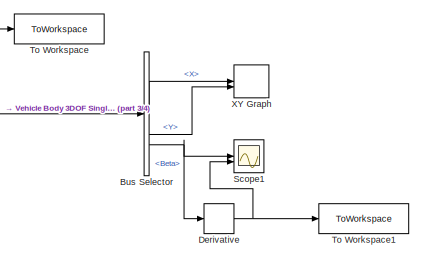
[diagram: root canvas - part 1/4, top right region]
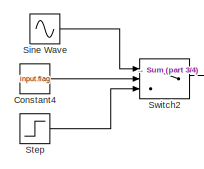
[diagram: root canvas - part 2/4, top left region]
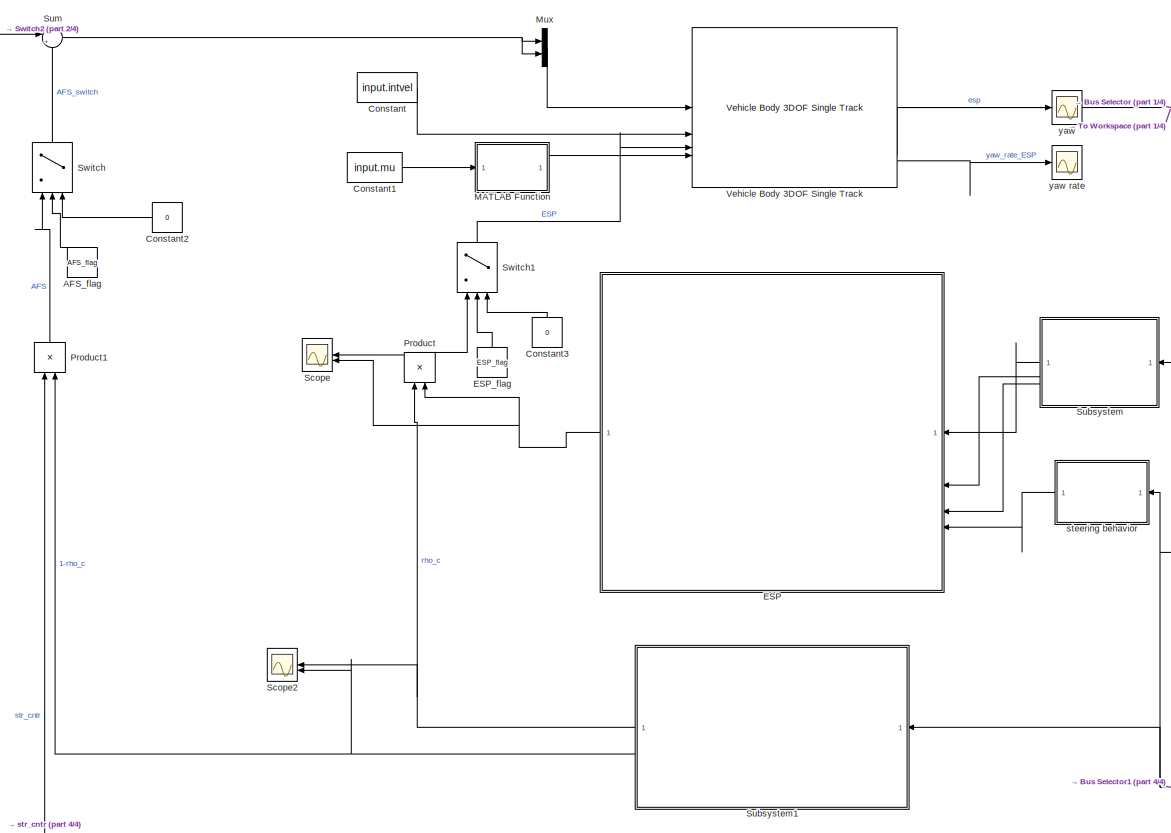
[diagram: root canvas - part 3/4, central region]
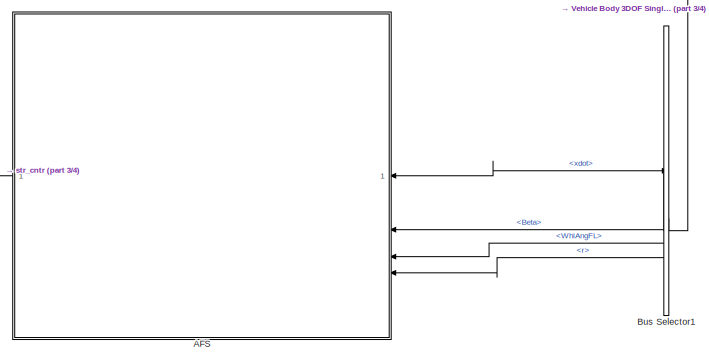
[diagram: root canvas - part 4/4, bottom center region]
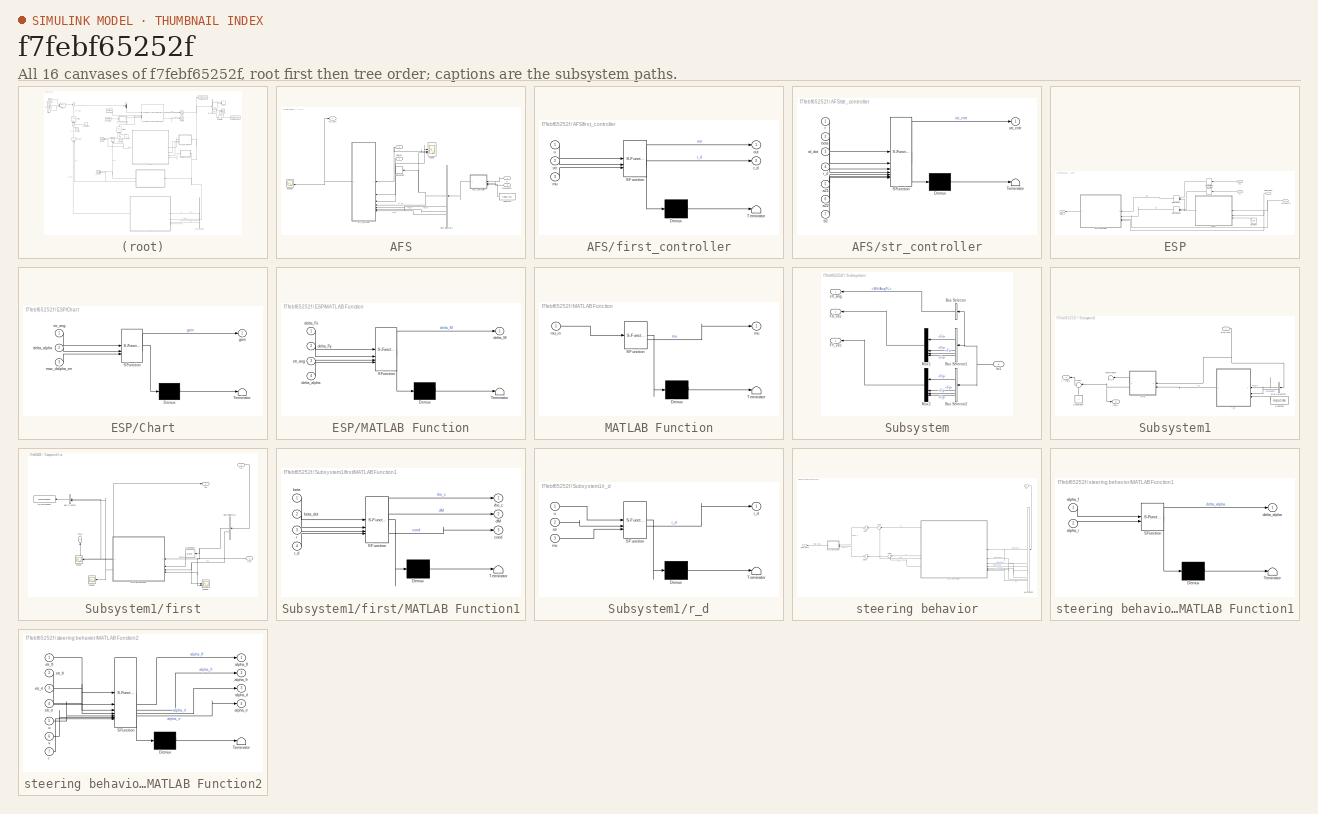
[diagram: thumbnail index - all 16 canvases of the model, root first then tree order]
MODEL slx_f7febf65252f
KIND model
CONFIG AbsTol = auto
CONFIG EnableMultiTasking = off
CONFIG FixedStep = auto
CONFIG MaxStep = auto
CONFIG MinStep = auto
CONFIG RelTol = 1e-3
CONFIG SampleTimeConstraint = Unconstrained
CONFIG SolverName = FixedStepAuto
CONFIG StartTime = 0.0
CONFIG StopTime = Tf
BLOCK [SubSystem] AFS
  NameLocation = top
BLOCK [Inport] AFS/<Beta>
  NameLocation = top
  Port = 2
BLOCK [Inport] AFS/<WhlAngFL>
  Port = 3
BLOCK [BusSelector] AFS/Bus Selector1
  NameLocation = top
  OutputSignals = r_d,a21,a22,b2
BLOCK [Constant] AFS/Constant
  NameLocation = top
  Value = input.mu
BLOCK [Derivative] AFS/Derivative
  NameLocation = top
BLOCK [Scope] AFS/Scope
  Floating = off
  NumInputPorts = 3
  ScopeSpecificationString = Simulink.scopes.TimeScopeBlockCfg('CurrentConfiguration', extmgr.ConfigurationSet(extmgr.Configuration('Core','General UI',true),extmgr.Configuration('Core','Source UI',true),extmgr.Configuration('Sources','WiredSimulink',true,'DataLoggingVariableName','ScopeData1'),extmgr.Configuration('Visuals','Time Domain',true,'SerializedDisplays',{struct('MinYLimReal','-1.67375','MaxYLimReal','1.77621','YLab...<+1405ch>
BLOCK [Scope] AFS/Scope1
  Floating = off
  NameLocation = top
  NumInputPorts = 2
  ScopeSpecificationString = Simulink.scopes.TimeScopeBlockCfg('CurrentConfiguration', extmgr.ConfigurationSet(extmgr.Configuration('Core','General UI',true),extmgr.Configuration('Core','Source UI',true),extmgr.Configuration('Sources','WiredSimulink',true,'DataLoggingVariableName','ScopeData1'),extmgr.Configuration('Visuals','Time Domain',true,'SerializedDisplays',{struct('MinYLimReal','-0.75','MaxYLimReal','0.74999','YLabelR...<+1428ch>
BLOCK [SubSystem] AFS/first_controller
  ErrorFcn = Stateflow.Translate.translate
  LibrarySourceBlock = simulink/User-Defined\nFunctions/MATLAB Function
  NameLocation = top
  PermitHierarchicalResolution = ExplicitOnly
  SFBlockType = MATLAB Function
  TreatAsAtomicUnit = on
BLOCK [Demux] AFS/first_controller/ Demux 
  Outputs = 1
BLOCK [S-Function] AFS/first_controller/ SFunction 
  EnableBusSupport = on
  FunctionName = sf_sfun
  Parameters = vehicle_data
  PortCounts = [3 3]
  SFcnIsStateOwnerBlock = off
  SFunctionDeploymentMode = off
  Tag = Stateflow S-Function 4
BLOCK [Terminator] AFS/first_controller/ Terminator 
BLOCK [Inport] AFS/first_controller/mu
  Port = 3
BLOCK [Outport] AFS/first_controller/out
BLOCK [Outport] AFS/first_controller/r_d
  Port = 2
BLOCK [Inport] AFS/first_controller/str
  Port = 2
BLOCK [Inport] AFS/first_controller/u
BLOCK [Inport] AFS/r
  NameLocation = top
  Port = 4
BLOCK [Outport] AFS/str_cntr
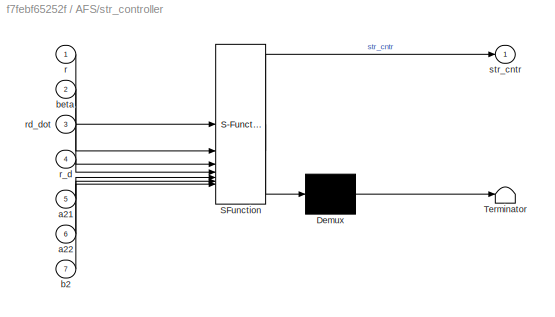
BLOCK [SubSystem] AFS/str_controller
  ErrorFcn = Stateflow.Translate.translate
  LibrarySourceBlock = simulink/User-Defined\nFunctions/MATLAB Function
  NameLocation = top
  PermitHierarchicalResolution = ExplicitOnly
  SFBlockType = MATLAB Function
  TreatAsAtomicUnit = on
BLOCK [Demux] AFS/str_controller/ Demux 
  Outputs = 1
BLOCK [S-Function] AFS/str_controller/ SFunction 
  EnableBusSupport = on
  FunctionName = sf_sfun
  Parameters = vehicle_data
  PortCounts = [7 2]
  SFcnIsStateOwnerBlock = off
  SFunctionDeploymentMode = off
  Tag = Stateflow S-Function 5
BLOCK [Terminator] AFS/str_controller/ Terminator 
BLOCK [Inport] AFS/str_controller/a21
  Port = 5
BLOCK [Inport] AFS/str_controller/a22
  Port = 6
BLOCK [Inport] AFS/str_controller/b2
  Port = 7
BLOCK [Inport] AFS/str_controller/beta
  Port = 2
BLOCK [Inport] AFS/str_controller/r
BLOCK [Inport] AFS/str_controller/r_d
  Port = 4
BLOCK [Inport] AFS/str_controller/rd_dot
  Port = 3
BLOCK [Outport] AFS/str_controller/str_cntr
BLOCK [Inport] AFS/u
  NameLocation = top
BLOCK [Constant] AFS_flag
  NameLocation = right
  Value = AFS_flag
BLOCK [BusSelector] Bus Selector
  OutputSignals = InertFrm.Cg.Disp.X,InertFrm.Cg.Disp.Y,BdyFrm.Cg.Ang.Beta
BLOCK [BusSelector] Bus Selector1
  NameLocation = top
  OutputSignals = BdyFrm.Cg.Vel.xdot,BdyFrm.Cg.Ang.Beta,BdyFrm.FrntAxl.Steer.WhlAngFL,BdyFrm.Cg.AngVel.r
BLOCK [Constant] Constant
  Value = input.intvel
BLOCK [Constant] Constant1
  Value = input.mu
BLOCK [Constant] Constant2
  NameLocation = top
  Value = 0
BLOCK [Constant] Constant3
  NameLocation = right
  Value = 0
BLOCK [Constant] Constant4
  Value = input.flag
BLOCK [Derivative] Derivative
BLOCK [SubSystem] ESP
  NameLocation = top
BLOCK [Inport] ESP/<WhlAngFL>
  NameLocation = top
BLOCK [SubSystem] ESP/Chart
  ErrorFcn = Stateflow.Translate.translate
  NameLocation = top
  PermitHierarchicalResolution = ExplicitOnly
  SFBlockType = Chart
  TreatAsAtomicUnit = on
BLOCK [Demux] ESP/Chart/ Demux 
  Outputs = 1
BLOCK [S-Function] ESP/Chart/ SFunction 
  EnableBusSupport = on
  FunctionName = sf_sfun
  PortCounts = [3 2]
  SFcnIsStateOwnerBlock = off
  SFunctionDeploymentMode = off
  Tag = Stateflow S-Function 6
BLOCK [Terminator] ESP/Chart/ Terminator 
BLOCK [Inport] ESP/Chart/delta_alpha
  Port = 2
BLOCK [Outport] ESP/Chart/gain
BLOCK [Inport] ESP/Chart/max_dalpha_err
  Port = 3
BLOCK [Inport] ESP/Chart/str_ang
BLOCK [Constant] ESP/Constant
  NameLocation = top
  Value = 0.05
BLOCK [Derivative] ESP/Derivative
  NameLocation = top
BLOCK [Derivative] ESP/Derivative1
  NameLocation = top
BLOCK [DotProduct] ESP/Dot Product
  NameLocation = top
  OutDataTypeStr = Inherit: Inherit via internal rule
BLOCK [DotProduct] ESP/Dot Product1
  NameLocation = top
  OutDataTypeStr = Inherit: Inherit via internal rule
BLOCK [Inport] ESP/Fxi
  NameLocation = top
  Port = 2
BLOCK [Inport] ESP/Fyi
  NameLocation = top
  Port = 3
BLOCK [SubSystem] ESP/MATLAB Function
  ErrorFcn = Stateflow.Translate.translate
  LibrarySourceBlock = simulink/User-Defined\nFunctions/MATLAB Function
  NameLocation = top
  PermitHierarchicalResolution = ExplicitOnly
  SFBlockType = MATLAB Function
  TreatAsAtomicUnit = on
BLOCK [Demux] ESP/MATLAB Function/ Demux 
  Outputs = 1
BLOCK [S-Function] ESP/MATLAB Function/ SFunction 
  EnableBusSupport = on
  FunctionName = sf_sfun
  Parameters = vehicle_data
  PortCounts = [4 2]
  SFcnIsStateOwnerBlock = off
  SFunctionDeploymentMode = off
  Tag = Stateflow S-Function 3
BLOCK [Terminator] ESP/MATLAB Function/ Terminator 
BLOCK [Inport] ESP/MATLAB Function/delta_Fx
BLOCK [Inport] ESP/MATLAB Function/delta_Fy
  Port = 2
BLOCK [Outport] ESP/MATLAB Function/delta_M
BLOCK [Inport] ESP/MATLAB Function/delta_alpha
  Port = 4
BLOCK [Inport] ESP/MATLAB Function/str_ang
  Port = 3
BLOCK [Outport] ESP/delta_M
  NameLocation = top
BLOCK [Inport] ESP/delta_alpha
  NameLocation = top
  Port = 4
BLOCK [Constant] ESP_flag
  NameLocation = right
  Value = ESP_flag
BLOCK [SubSystem] MATLAB Function
  ErrorFcn = Stateflow.Translate.translate
  LibrarySourceBlock = simulink/User-Defined\nFunctions/MATLAB Function
  PermitHierarchicalResolution = ExplicitOnly
  SFBlockType = MATLAB Function
  TreatAsAtomicUnit = on
BLOCK [Demux] MATLAB Function/ Demux 
  Outputs = 1
BLOCK [S-Function] MATLAB Function/ SFunction 
  EnableBusSupport = on
  FunctionName = sf_sfun
  PortCounts = [1 2]
  SFcnIsStateOwnerBlock = off
  SFunctionDeploymentMode = off
  Tag = Stateflow S-Function 2
BLOCK [Terminator] MATLAB Function/ Terminator 
BLOCK [Outport] MATLAB Function/mu
BLOCK [Inport] MATLAB Function/mu_in
BLOCK [Mux] Mux
  DisplayOption = bar
  Inputs = 2
BLOCK [Product] Product
  NameLocation = right
BLOCK [Product] Product1
  NameLocation = right
BLOCK [Scope] Scope
  Floating = off
  NameLocation = top
  NumInputPorts = 2
  ScopeSpecificationString = Simulink.scopes.TimeScopeBlockCfg('CurrentConfiguration', extmgr.ConfigurationSet(extmgr.Configuration('Core','General UI',true),extmgr.Configuration('Core','Source UI',true),extmgr.Configuration('Sources','WiredSimulink',true,'DataLoggingVariableName','ScopeData1'),extmgr.Configuration('Visuals','Time Domain',true,'SerializedDisplays',{struct('MinYLimReal','-4557.4267','MaxYLimReal','511.96642','...<+1597ch>
BLOCK [Scope] Scope1
  Floating = off
  NumInputPorts = 2
  ScopeSpecificationString = Simulink.scopes.TimeScopeBlockCfg('CurrentConfiguration', extmgr.ConfigurationSet(extmgr.Configuration('Core','General UI',true),extmgr.Configuration('Core','Source UI',true),extmgr.Configuration('Sources','WiredSimulink',true,'DataLoggingVariableName','ScopeData5'),extmgr.Configuration('Visuals','Time Domain',true,'SerializedDisplays',{struct('MinYLimReal','-1.42099','MaxYLimReal','1.391','YLabel...<+1443ch>
BLOCK [Scope] Scope2
  Floating = off
  NameLocation = top
  NumInputPorts = 2
  ScopeSpecificationString = Simulink.scopes.TimeScopeBlockCfg('CurrentConfiguration', extmgr.ConfigurationSet(extmgr.Configuration('Core','General UI',true),extmgr.Configuration('Core','Source UI',true),extmgr.Configuration('Sources','WiredSimulink',true,'DataLoggingVariableName','ScopeData6'),extmgr.Configuration('Visuals','Time Domain',true,'SerializedDisplays',{struct('MinYLimReal','-0.125','MaxYLimReal','1.125','YLabelRe...<+1386ch>
BLOCK [Sin] Sine Wave
  Amplitude = input.str.amp
  Frequency = input.str.freq
  SampleTime = input.str.sample_time
BLOCK [Step] Step
  After = input.str.amp
  SampleTime = 0
  Time = 2
BLOCK [SubSystem] Subsystem
  NameLocation = top
BLOCK [BusSelector] Subsystem/Bus Selector
  NameLocation = top
  OutputSignals = BdyFrm.FrntAxl.Steer.WhlAngFL
BLOCK [BusSelector] Subsystem/Bus Selector1
  NameLocation = top
  OutputSignals = BdyFrm.Forces.FrntAxl.Lft.Fx,BdyFrm.Forces.FrntAxl.Rght.Fx,BdyFrm.Forces.RearAxl.Lft.Fx,BdyFrm.Forces.RearAxl.Rght.Fx
BLOCK [BusSelector] Subsystem/Bus Selector2
  NameLocation = top
  OutputSignals = BdyFrm.Forces.FrntAxl.Lft.Fy,BdyFrm.Forces.FrntAxl.Rght.Fy,BdyFrm.Forces.RearAxl.Lft.Fy,BdyFrm.Forces.RearAxl.Rght.Fy
BLOCK [Outport] Subsystem/FX_vec
  Port = 2
BLOCK [Outport] Subsystem/FY_vec
  Port = 3
BLOCK [Inport] Subsystem/In1
BLOCK [Mux] Subsystem/Mux1
  DisplayOption = bar
  NameLocation = top
BLOCK [Mux] Subsystem/Mux2
  DisplayOption = bar
  NameLocation = top
BLOCK [Outport] Subsystem/str_ang
  NameLocation = top
BLOCK [SubSystem] Subsystem1
  NameLocation = top
BLOCK [Outport] Subsystem1/1 - rho_c
  NameLocation = top
BLOCK [BusSelector] Subsystem1/Bus Selector1
  NameLocation = top
  OutputSignals = BdyFrm.Cg.Vel.xdot,BdyFrm.FrntAxl.Steer.WhlAngFL
BLOCK [Inport] Subsystem1/Bus info
BLOCK [Constant] Subsystem1/Constant
  NameLocation = top
  Value = input.mu
BLOCK [Constant] Subsystem1/Constant5
  NameLocation = right
BLOCK [Sum] Subsystem1/Sum1
  Inputs = |-+
  NameLocation = top
BLOCK [Terminator] Subsystem1/Terminator
  NameLocation = top
BLOCK [SubSystem] Subsystem1/first
  NameLocation = top
BLOCK [BusCreator] Subsystem1/first/Bus Creator
  DisplayOption = bar
  InheritFromInputs = on
  Inputs = 2
  NameLocation = top
BLOCK [BusSelector] Subsystem1/first/Bus Selector1
  NameLocation = top
  OutputSignals = BdyFrm.Cg.Ang.Beta,BdyFrm.Cg.AngVel.r
BLOCK [Derivative] Subsystem1/first/Derivative
  NameLocation = top
BLOCK [Inport] Subsystem1/first/In1
BLOCK [SubSystem] Subsystem1/first/MATLAB Function1
  ErrorFcn = Stateflow.Translate.translate
  LibrarySourceBlock = simulink/User-Defined\nFunctions/MATLAB Function
  NameLocation = top
  PermitHierarchicalResolution = ExplicitOnly
  SFBlockType = MATLAB Function
  TreatAsAtomicUnit = on
BLOCK [Demux] Subsystem1/first/MATLAB Function1/ Demux 
  Outputs = 1
BLOCK [S-Function] Subsystem1/first/MATLAB Function1/ SFunction 
  EnableBusSupport = on
  FunctionName = sf_sfun
  Parameters = vehicle_data
  PortCounts = [4 4]
  SFcnIsStateOwnerBlock = off
  SFunctionDeploymentMode = off
  Tag = Stateflow S-Function 23
BLOCK [Terminator] Subsystem1/first/MATLAB Function1/ Terminator 
BLOCK [Inport] Subsystem1/first/MATLAB Function1/beta
BLOCK [Inport] Subsystem1/first/MATLAB Function1/beta_dot
  Port = 2
BLOCK [Outport] Subsystem1/first/MATLAB Function1/cond
  Port = 3
BLOCK [Outport] Subsystem1/first/MATLAB Function1/dM
  Port = 2
BLOCK [Inport] Subsystem1/first/MATLAB Function1/r
  Port = 3
BLOCK [Inport] Subsystem1/first/MATLAB Function1/r_d
  Port = 4
BLOCK [Outport] Subsystem1/first/MATLAB Function1/rho_c
BLOCK [Scope] Subsystem1/first/Scope
  Floating = off
  NameLocation = top
  NumInputPorts = 1
  ScopeSpecificationString = Simulink.scopes.TimeScopeBlockCfg('CurrentConfiguration', extmgr.ConfigurationSet(extmgr.Configuration('Core','General UI',true),extmgr.Configuration('Core','Source UI',true),extmgr.Configuration('Sources','WiredSimulink',true,'DataLoggingVariableName','ScopeData2'),extmgr.Configuration('Visuals','Time Domain',true,'SerializedDisplays',{struct('MinYLimReal','-78.6441','MaxYLimReal','367.95585','YL...<+1530ch>
BLOCK [Scope] Subsystem1/first/Scope1
  Floating = off
  NumInputPorts = 2
  ScopeSpecificationString = Simulink.scopes.TimeScopeBlockCfg('CurrentConfiguration', extmgr.ConfigurationSet(extmgr.Configuration('Core','General UI',true),extmgr.Configuration('Core','Source UI',true),extmgr.Configuration('Sources','WiredSimulink',true,'DataLoggingVariableName','ScopeData3'),extmgr.Configuration('Visuals','Time Domain',true,'SerializedDisplays',{struct('MinYLimReal','-1.14469','MaxYLimReal','2.95049','YLab...<+1392ch>
BLOCK [Scope] Subsystem1/first/Scope2
  Floating = off
  NameLocation = top
  NumInputPorts = 1
  ScopeSpecificationString = Simulink.scopes.TimeScopeBlockCfg('CurrentConfiguration', extmgr.ConfigurationSet(extmgr.Configuration('Core','General UI',true),extmgr.Configuration('Core','Source UI',true),extmgr.Configuration('Sources','WiredSimulink',true,'DataLoggingVariableName','ScopeData4'),extmgr.Configuration('Visuals','Time Domain',true,'SerializedDisplays',{struct('MinYLimReal','-7.85809','MaxYLimReal','70.72279','YLa...<+1410ch>
BLOCK [ToWorkspace] Subsystem1/first/To Workspace
  FixptAsFi = on
  MaxDataPoints = inf
  NameLocation = top
  SampleTime = -1
  SaveFormat = Timeseries
  VariableName = Activation_fun
BLOCK [Outport] Subsystem1/first/dM
BLOCK [Inport] Subsystem1/first/r_d
  Port = 2
BLOCK [Outport] Subsystem1/first/rho_c
  NameLocation = right
  Port = 2
BLOCK [SubSystem] Subsystem1/r_d
  ErrorFcn = Stateflow.Translate.translate
  LibrarySourceBlock = simulink/User-Defined\nFunctions/MATLAB Function
  NameLocation = top
  PermitHierarchicalResolution = ExplicitOnly
  SFBlockType = MATLAB Function
  TreatAsAtomicUnit = on
BLOCK [Demux] Subsystem1/r_d/ Demux 
  Outputs = 1
BLOCK [S-Function] Subsystem1/r_d/ SFunction 
  EnableBusSupport = on
  FunctionName = sf_sfun
  Parameters = vehicle_data
  PortCounts = [3 2]
  SFcnIsStateOwnerBlock = off
  SFunctionDeploymentMode = off
  Tag = Stateflow S-Function 24
BLOCK [Terminator] Subsystem1/r_d/ Terminator 
BLOCK [Inport] Subsystem1/r_d/mu
  Port = 3
BLOCK [Outport] Subsystem1/r_d/r_d
BLOCK [Inport] Subsystem1/r_d/str
  Port = 2
BLOCK [Inport] Subsystem1/r_d/u
BLOCK [Outport] Subsystem1/rho_c
  Port = 2
BLOCK [Sum] Sum
  Inputs = |+-
BLOCK [Switch] Switch
  Criteria = u2 > Threshold
  InputSameDT = off
  NameLocation = right
  SaturateOnIntegerOverflow = off
  Threshold = 0.5
BLOCK [Switch] Switch1
  Criteria = u2 > Threshold
  InputSameDT = off
  NameLocation = right
  SaturateOnIntegerOverflow = off
  Threshold = 0.5
BLOCK [Switch] Switch2
  Criteria = u2 > Threshold
  InputSameDT = off
  SaturateOnIntegerOverflow = off
  Threshold = 0.5
BLOCK [ToWorkspace] To Workspace
  FixptAsFi = on
  MaxDataPoints = inf
  SampleTime = -1
  SaveFormat = Timeseries
  VariableName = ESP
BLOCK [ToWorkspace] To Workspace1
  FixptAsFi = on
  MaxDataPoints = inf
  SampleTime = -1
  SaveFormat = Timeseries
  VariableName = beta_dot
BLOCK [Reference] Vehicle Body 3DOF Single Track  REF=autolibshared/Vehicle Body 3DOF Single Track
  LibrarySourceBlock = vehdynlibeom/Vehicle Body 3DOF Single Track
  SourceBlock = autolibshared/Vehicle Body 3DOF Single Track
  SourceType = Vehicle Body 3DOF Lateral
BLOCK [Record] XY Graph
  CompatibilityTag = XY
  FileSettingsInternal = {"entries":[{"content":{"excelSettings":{"content":{},"type":"Streamout.ExcelSettings"}},"type":"Streamout.FileSettingStorage","uuid":""}],"packageUris":["http:\/\/schema.mathworks.com\/mf0\/streamout_blocks\/R2020a"],"version":"1.0"}
  Layout = [1 1]
  SignalsInternal = {"entries":[{"content":{"signals":[{"content":{"blockPath":[],"dimensions":[1],"domain":"","lineColor":"#4dbeee","plots":[1],"port":1,"sid":[""],"signalID":228075,"signalName":"<X>"},"type":"RecordBlkView.Signal","uuid":""},{"content":{"blockPath":[],"dimensions":[1],"domain":"","lineColor":"#a2142f","plots":[1],"port":2,"sid":[""],"signalID":228079,"signalName":"<Y>"},"type":"RecordBlkView.Signal...<+158ch>
  VisualizationBindings = {"xyplotplugin":{"info":[{"series":[{"bindingParametersList":[{"parameter":"X-Axis","signalID":228075,"signalName":"<X>"},{"parameter":"Y-Axis","signalID":228079,"signalName":"<Y>"}],"seriesID":60697}],"subplotID":1}]}}
BLOCK [SubSystem] steering behavior
  NameLocation = top
BLOCK [BusSelector] steering behavior/Bus Selector4
  NameLocation = top
  OutputSignals = BdyFrm.FrntAxl.Steer.WhlAngFL,BdyFrm.FrntAxl.Steer.WhlAngFR,BdyFrm.RearAxl.Steer.WhlAngRL,BdyFrm.RearAxl.Steer.WhlAngRR,BdyFrm.Cg.Vel.xdot,BdyFrm.Cg.Vel.ydot,BdyFrm.Cg.AngVel.r
BLOCK [Gain] steering behavior/Gain
  Gain = 0.5
  NameLocation = top
BLOCK [Gain] steering behavior/Gain1
  Gain = 0.5
  NameLocation = top
BLOCK [Inport] steering behavior/In1
BLOCK [SubSystem] steering behavior/MATLAB Function1
  ErrorFcn = Stateflow.Translate.translate
  LibrarySourceBlock = simulink/User-Defined\nFunctions/MATLAB Function
  NameLocation = top
  PermitHierarchicalResolution = ExplicitOnly
  SFBlockType = MATLAB Function
  TreatAsAtomicUnit = on
BLOCK [Demux] steering behavior/MATLAB Function1/ Demux 
  Outputs = 1
BLOCK [S-Function] steering behavior/MATLAB Function1/ SFunction 
  EnableBusSupport = on
  FunctionName = sf_sfun
  PortCounts = [2 2]
  SFcnIsStateOwnerBlock = off
  SFunctionDeploymentMode = off
  Tag = Stateflow S-Function 7
BLOCK [Terminator] steering behavior/MATLAB Function1/ Terminator 
BLOCK [Inport] steering behavior/MATLAB Function1/alpha_f
BLOCK [Inport] steering behavior/MATLAB Function1/alpha_r
  Port = 2
BLOCK [Outport] steering behavior/MATLAB Function1/delta_alpha
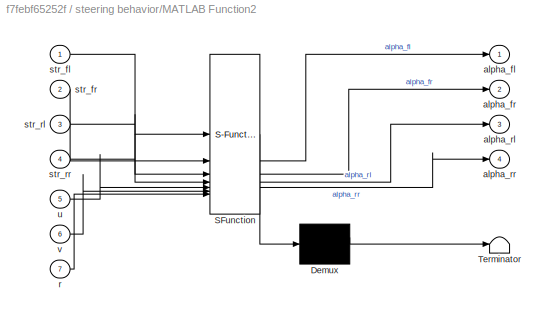
BLOCK [SubSystem] steering behavior/MATLAB Function2
  ErrorFcn = Stateflow.Translate.translate
  LibrarySourceBlock = simulink/User-Defined\nFunctions/MATLAB Function
  NameLocation = top
  PermitHierarchicalResolution = ExplicitOnly
  SFBlockType = MATLAB Function
  TreatAsAtomicUnit = on
BLOCK [Demux] steering behavior/MATLAB Function2/ Demux 
  Outputs = 1
BLOCK [S-Function] steering behavior/MATLAB Function2/ SFunction 
  EnableBusSupport = on
  FunctionName = sf_sfun
  Parameters = vehicle_data
  PortCounts = [7 5]
  SFcnIsStateOwnerBlock = off
  SFunctionDeploymentMode = off
  Tag = Stateflow S-Function 1
BLOCK [Terminator] steering behavior/MATLAB Function2/ Terminator 
BLOCK [Outport] steering behavior/MATLAB Function2/alpha_fl
BLOCK [Outport] steering behavior/MATLAB Function2/alpha_fr
  Port = 2
BLOCK [Outport] steering behavior/MATLAB Function2/alpha_rl
  Port = 3
BLOCK [Outport] steering behavior/MATLAB Function2/alpha_rr
  Port = 4
BLOCK [Inport] steering behavior/MATLAB Function2/r
  Port = 7
BLOCK [Inport] steering behavior/MATLAB Function2/str_fl
BLOCK [Inport] steering behavior/MATLAB Function2/str_fr
  Port = 2
BLOCK [Inport] steering behavior/MATLAB Function2/str_rl
  Port = 3
BLOCK [Inport] steering behavior/MATLAB Function2/str_rr
  Port = 4
BLOCK [Inport] steering behavior/MATLAB Function2/u
  Port = 5
BLOCK [Inport] steering behavior/MATLAB Function2/v
  Port = 6
BLOCK [Sum] steering behavior/Sum1
  Inputs = |++
  NameLocation = top
BLOCK [Sum] steering behavior/Sum2
  Inputs = |++
  NameLocation = top
BLOCK [Outport] steering behavior/delta_alpha
BLOCK [Scope] yaw
  Floating = off
  NumInputPorts = 1
  ScopeSpecificationString = Simulink.scopes.TimeScopeBlockCfg('CurrentConfiguration', extmgr.ConfigurationSet(extmgr.Configuration('Core','General UI',true),extmgr.Configuration('Core','Source UI',true),extmgr.Configuration('Sources','WiredSimulink',true),extmgr.Configuration('Visuals','Time Domain',true,'SerializedDisplays',{struct('MinYLimReal','-1.93729','MaxYLimReal','3.3852','YLabelReal','','MinYLimMag','0.00000','MaxYL...<+1355ch>
BLOCK [Scope] yaw rate
  Floating = off
  NumInputPorts = 1
  ScopeSpecificationString = Simulink.scopes.TimeScopeBlockCfg('CurrentConfiguration', extmgr.ConfigurationSet(extmgr.Configuration('Core','General UI',true),extmgr.Configuration('Core','Source UI',true),extmgr.Configuration('Sources','WiredSimulink',true,'DataLoggingVariableName','ScopeData1'),extmgr.Configuration('Visuals','Time Domain',true,'SerializedDisplays',{struct('MinYLimReal','-1.67375','MaxYLimReal','1.77621','YLab...<+1420ch>
LINE AFS/<Beta>:1 -> AFS/str_controller:2
LINE AFS/<WhlAngFL>:1 -> AFS/first_controller:2
NET AFS/Bus Selector1:1 -> AFS/Derivative:1, AFS/Scope:3, AFS/str_controller:4
LINE AFS/Bus Selector1:2 -> AFS/str_controller:5
LINE AFS/Bus Selector1:3 -> AFS/str_controller:6
LINE AFS/Bus Selector1:4 -> AFS/str_controller:7
LINE AFS/Constant:1 -> AFS/first_controller:3
NET AFS/Derivative:1 -> AFS/Scope:1, AFS/str_controller:3
LINE AFS/first_controller:1 -> AFS/Bus Selector1:1
NET AFS/r:1 -> AFS/Scope:2, AFS/str_controller:1
NET AFS/str_controller:1 -> AFS/Scope1:2, AFS/str_cntr:1
LINE AFS/u:1 -> AFS/first_controller:1
LINE AFS:1 -> Product1:1
LINE AFS_flag:1 -> Switch:2
LINE Bus Selector1:1 -> AFS:1
LINE Bus Selector1:2 -> AFS:2
LINE Bus Selector1:3 -> AFS:3
LINE Bus Selector1:4 -> AFS:4
LINE Bus Selector:1 -> XY Graph:1
LINE Bus Selector:2 -> XY Graph:2
NET Bus Selector:3 -> Derivative:1, Scope1:1
LINE Constant1:1 -> MATLAB Function:1
LINE Constant2:1 -> Switch:3
LINE Constant3:1 -> Switch1:3
LINE Constant4:1 -> Switch2:2
LINE Constant:1 -> Vehicle Body 3DOF Single Track:2
NET Derivative:1 -> Scope1:2, To Workspace1:1
NET ESP/<WhlAngFL>:1 -> ESP/Chart:1, ESP/MATLAB Function:3
NET ESP/Chart:1 -> ESP/Dot Product1:2, ESP/Dot Product:2
LINE ESP/Constant:1 -> ESP/Chart:3
LINE ESP/Derivative1:1 -> ESP/Dot Product:1
LINE ESP/Derivative:1 -> ESP/Dot Product1:1
LINE ESP/Dot Product1:1 -> ESP/MATLAB Function:2
LINE ESP/Dot Product:1 -> ESP/MATLAB Function:1
LINE ESP/Fxi:1 -> ESP/Derivative1:1
LINE ESP/Fyi:1 -> ESP/Derivative:1
LINE ESP/MATLAB Function:1 -> ESP/delta_M:1
NET ESP/delta_alpha:1 -> ESP/Chart:2, ESP/MATLAB Function:4
NET ESP:1 -> Product:2, Scope:2
LINE ESP_flag:1 -> Switch1:2
LINE MATLAB Function:1 -> Vehicle Body 3DOF Single Track:4
LINE Mux:1 -> Vehicle Body 3DOF Single Track:1
LINE Product1:1 -> Switch:1
NET Product:1 -> Scope:1, Switch1:1
LINE Sine Wave:1 -> Switch2:1
LINE Step:1 -> Switch2:3
LINE Subsystem/Bus Selector1:1 -> Subsystem/Mux1:1
LINE Subsystem/Bus Selector1:2 -> Subsystem/Mux1:2
LINE Subsystem/Bus Selector1:3 -> Subsystem/Mux1:3
LINE Subsystem/Bus Selector1:4 -> Subsystem/Mux1:4
LINE Subsystem/Bus Selector2:1 -> Subsystem/Mux2:1
LINE Subsystem/Bus Selector2:2 -> Subsystem/Mux2:2
LINE Subsystem/Bus Selector2:3 -> Subsystem/Mux2:3
LINE Subsystem/Bus Selector2:4 -> Subsystem/Mux2:4
LINE Subsystem/Bus Selector:1 -> Subsystem/str_ang:1
NET Subsystem/In1:1 -> Subsystem/Bus Selector1:1, Subsystem/Bus Selector2:1, Subsystem/Bus Selector:1
LINE Subsystem/Mux1:1 -> Subsystem/FX_vec:1
LINE Subsystem/Mux2:1 -> Subsystem/FY_vec:1
LINE Subsystem1/Bus Selector1:1 -> Subsystem1/r_d:1
LINE Subsystem1/Bus Selector1:2 -> Subsystem1/r_d:2
NET Subsystem1/Bus info:1 -> Subsystem1/Bus Selector1:1, Subsystem1/first:1
LINE Subsystem1/Constant5:1 -> Subsystem1/Sum1:2
LINE Subsystem1/Constant:1 -> Subsystem1/r_d:3
LINE Subsystem1/Sum1:1 -> Subsystem1/1 - rho_c:1
LINE Subsystem1/first/Bus Creator:1 -> Subsystem1/first/To Workspace:1
NET Subsystem1/first/Bus Selector1:1 -> Subsystem1/first/Derivative:1, Subsystem1/first/MATLAB Function1:1
NET Subsystem1/first/Bus Selector1:2 -> Subsystem1/first/MATLAB Function1:3, Subsystem1/first/Scope1:1
LINE Subsystem1/first/Derivative:1 -> Subsystem1/first/MATLAB Function1:2
LINE Subsystem1/first/In1:1 -> Subsystem1/first/Bus Selector1:1
NET Subsystem1/first/MATLAB Function1:1 -> Subsystem1/first/Bus Creator:1, Subsystem1/first/rho_c:1
NET Subsystem1/first/MATLAB Function1:2 -> Subsystem1/first/Scope:1, Subsystem1/first/dM:1
NET Subsystem1/first/MATLAB Function1:3 -> Subsystem1/first/Bus Creator:2, Subsystem1/first/Scope2:1
NET Subsystem1/first/r_d:1 -> Subsystem1/first/MATLAB Function1:4, Subsystem1/first/Scope1:2
LINE Subsystem1/first:1 -> Subsystem1/Terminator:1
NET Subsystem1/first:2 -> Subsystem1/Sum1:1, Subsystem1/rho_c:1
LINE Subsystem1/r_d:1 -> Subsystem1/first:2
NET Subsystem1:1 -> Product:1, Scope2:1
NET Subsystem1:2 -> Product1:2, Scope2:2
LINE Subsystem:1 -> ESP:1
LINE Subsystem:2 -> ESP:2
LINE Subsystem:3 -> ESP:3
NET Sum:1 -> Mux:1, Mux:2
LINE Switch1:1 -> Vehicle Body 3DOF Single Track:3
LINE Switch2:1 -> Sum:1
LINE Switch:1 -> Sum:2
NET Vehicle Body 3DOF Single Track:1 -> Bus Selector1:1, Bus Selector:1, Subsystem1:1, Subsystem:1, To Workspace:1, steering behavior:1
LINE Vehicle Body 3DOF Single Track:4 -> yaw:1
LINE Vehicle Body 3DOF Single Track:5 -> yaw rate:1
LINE steering behavior/Bus Selector4:1 -> steering behavior/MATLAB Function2:1
LINE steering behavior/Bus Selector4:2 -> steering behavior/MATLAB Function2:2
LINE steering behavior/Bus Selector4:3 -> steering behavior/MATLAB Function2:3
LINE steering behavior/Bus Selector4:4 -> steering behavior/MATLAB Function2:4
LINE steering behavior/Bus Selector4:5 -> steering behavior/MATLAB Function2:5
LINE steering behavior/Bus Selector4:6 -> steering behavior/MATLAB Function2:6
LINE steering behavior/Bus Selector4:7 -> steering behavior/MATLAB Function2:7
LINE steering behavior/Gain1:1 -> steering behavior/MATLAB Function1:2
LINE steering behavior/Gain:1 -> steering behavior/MATLAB Function1:1
LINE steering behavior/In1:1 -> steering behavior/Bus Selector4:1
LINE steering behavior/MATLAB Function1:1 -> steering behavior/delta_alpha:1
LINE steering behavior/MATLAB Function2:1 -> steering behavior/Sum1:1
LINE steering behavior/MATLAB Function2:2 -> steering behavior/Sum1:2
LINE steering behavior/MATLAB Function2:3 -> steering behavior/Sum2:1
LINE steering behavior/MATLAB Function2:4 -> steering behavior/Sum2:2
LINE steering behavior/Sum1:1 -> steering behavior/Gain:1
LINE steering behavior/Sum2:1 -> steering behavior/Gain1:1
LINE steering behavior:1 -> ESP:4
note: NET lines group one-source signal fan-out (src -> all destinations, sorted); 1:1 wires keep LINE
CHART AFS/str_controller states=1 transitions=1
  STATE_LABEL 'eML_blk_kernel()'
  STATE_LABEL 'SCRIPT:\nfunction str_cntr = str_controller(r, beta , rd_dot , r_d , a21 , a22 , b2, vehicle_data)\n\n%    lambda = AFS.lambda;\n    s = r - r_d;\n    lambda = vehicle_data.AFS.lambda;\n    X      = vehicle_data.AFS.X;\n    str_cntr = ((1/b2) * (-a21*beta - a22*r + rd_dot - lambda*(s))) - sign(s)*X;\n\n\nend\n'
CHART ESP/Chart states=8 transitions=15
  STATE_LABEL 'ESP_ON'
  STATE_LABEL 'FRONT_WHEEL'
  STATE_LABEL 'FRONT_LEFT\ngain = [1 0 0 0];\n'
  STATE_LABEL 'FRONT_RIGHT\ngain = [0 1 0 0] ;'
  STATE_LABEL '[str_ang >0]'
  STATE_LABEL '[str_ang <     0]'
  STATE_LABEL 'REAR_WHEEL\n'
  STATE_LABEL 'REAR_LEFT\ngain = [0 0 1 0];'
  STATE_LABEL 'REAR_RIGHT\ngain = [0 0 0 1];'
  STATE_LABEL '[str_ang > 0]'
  STATE_LABEL '[str_ang > 0]'
  STATE_LABEL '[delta_alpha > 0 ]'
  STATE_LABEL '[delta_alpha < 0]'
  STATE_LABEL 'FRONT_WHEEL'
  STATE_LABEL 'FRONT_LEFT\ngain = [1 0 0 0];\n'
  STATE_LABEL 'FRONT_RIGHT\ngain = [0 1 0 0] ;'
  STATE_LABEL '[str_ang >0]'
  STATE_LABEL '[str_ang <     0]'
  STATE_LABEL 'FRONT_LEFT\ngain = [1 0 0 0];\n'
  STATE_LABEL 'FRONT_RIGHT\ngain = [0 1 0 0] ;'
  STATE_LABEL 'REAR_WHEEL\n'
  STATE_LABEL 'REAR_LEFT\ngain = [0 0 1 0];'
  STATE_LABEL 'REAR_RIGHT\ngain = [0 0 0 1];'
  STATE_LABEL '[str_ang > 0]'
  STATE_LABEL '[str_ang > 0]'
  STATE_LABEL 'REAR_LEFT\ngain = [0 0 1 0];'
  STATE_LABEL 'REAR_RIGHT\ngain = [0 0 0 1];'
  STATE_LABEL 'ESP_OFF\ngain = [0 0 0 0]   ;'
CHART steering behavior/MATLAB Function1 states=1 transitions=1
  STATE_LABEL 'eML_blk_kernel()'
  STATE_LABEL 'SCRIPT:\nfunction delta_alpha = fcn(alpha_f , alpha_r)\n\ndelta_alpha = alpha_r - alpha_f;\n'
CHART Subsystem1/first/MATLAB Function1 states=1 transitions=1
  STATE_LABEL 'eML_blk_kernel()'
  STATE_LABEL 'SCRIPT:\nfunction [rho_c , dM , cond] = fcn(beta , beta_dot , r , r_d , vehicle_data)\n\n    \n    k1 = vehicle_data.AFS.k1;\n    k2 = vehicle_data.AFS.k2;\n    b1 = vehicle_data.AFS.B1;\n    b2 = vehicle_data.AFS.B2;\n\n    cond = abs(k1*beta_dot + k2*beta);\n\n    if cond < b1\n        rho_c = 1;\n    elseif cond >= b1 && cond <= b2\n        rho_c = (b2 - cond)/(b2-b1);\n    else\n        rho_c = 0;\n    end\n\n\n ...<+76ch>'
CHART Subsystem1/r_d states=1 transitions=1
  STATE_LABEL 'eML_blk_kernel()'
  STATE_LABEL 'SCRIPT:\nfunction  r_d = r_d(u , str, mu , vehicle_data)\n\n\n% here is some simplified parameters :)\n   m = vehicle_data.vehicle.m;\n   a = vehicle_data.vehicle.Lf;\n   b = vehicle_data.vehicle.Lr;\n   izz = vehicle_data.vehicle.i_zz;\n   g = vehicle_data.vehicle.g;\n   L = vehicle_data.vehicle.L;\n   Caf = vehicle_data.front_suspension.Ks_f ;\n   Car = vehicle_data.rear_suspension.Ks_r;\n   \n   \n% lets calc...<+205ch>'
CHART steering behavior/MATLAB Function2 states=1 transitions=1
  STATE_LABEL 'eML_blk_kernel()'
  STATE_LABEL 'SCRIPT:\nfunction [alpha_fl , alpha_fr , alpha_rl , alpha_rr] = fcn(str_fl , str_fr , str_rl , str_rr , u , v , r , vehicle_data)\n\n\n    a = vehicle_data.vehicle.Lf;\n    b = vehicle_data.vehicle.Lr;\n    Tw = vehicle_data.vehicle.Wf;\n    \n    alpha_fl = str_fl - atan((v+ a*r )/(u + 0.5*Tw*r ));\n    alpha_fr = str_fr - atan((v+ a*r )/(u - 0.5*Tw*r ));\n    alpha_rl = str_rl + atan((b*r - v )/(u + 0.5*T...<+72ch>'
CHART MATLAB Function states=1 transitions=1
  STATE_LABEL 'eML_blk_kernel()'
  STATE_LABEL 'SCRIPT:\nfunction mu = fcn(mu_in)\n\nmu = mu_in*ones(2);\n'
CHART ESP/MATLAB Function states=1 transitions=1
  STATE_LABEL 'eML_blk_kernel()'
  STATE_LABEL 'SCRIPT:\nfunction delta_M   = yaw_moment_diff(delta_Fx , delta_Fy ,  str_ang , delta_alpha , vehicle_data)\n\n    a = vehicle_data.vehicle.Lf;\n    b = vehicle_data.vehicle.Lr;\n    L = vehicle_data.vehicle.L;\n    Tw = vehicle_data.vehicle.Wf;\n\n    if delta_alpha > 0      % over steering\n\n    \n        delta_Mz = (delta_Fx*(0.5*Tw*cos(str_ang) + a*sin(str_ang))) - (delta_Fy * (a*cos(str_ang) - 0.5*Tw*si...<+291ch>'
CHART AFS/first_controller states=1 transitions=1
  STATE_LABEL 'eML_blk_kernel()'
  STATE_LABEL 'SCRIPT:\nfunction [out, r_d] = r_d(u , str, mu , vehicle_data)\n\n\n% here is some simplified parameters :)\n   m = vehicle_data.vehicle.m;\n   a = vehicle_data.vehicle.Lf;\n   b = vehicle_data.vehicle.Lr;\n   izz = vehicle_data.vehicle.i_zz;\n   g = vehicle_data.vehicle.g;\n   L = vehicle_data.vehicle.L;\n   Caf = vehicle_data.front_suspension.Ks_f ;\n   Car = vehicle_data.rear_suspension.Ks_r;\n   \n   \n% let...<+562ch>'
CHART  states=0 transitions=0
CHART  states=0 transitions=0
CHART  states=0 transitions=0
CHART  states=0 transitions=0
CHART  states=0 transitions=0
CHART  states=0 transitions=0
CHART  states=0 transitions=0
CHART  states=0 transitions=0
CHART  states=0 transitions=0
